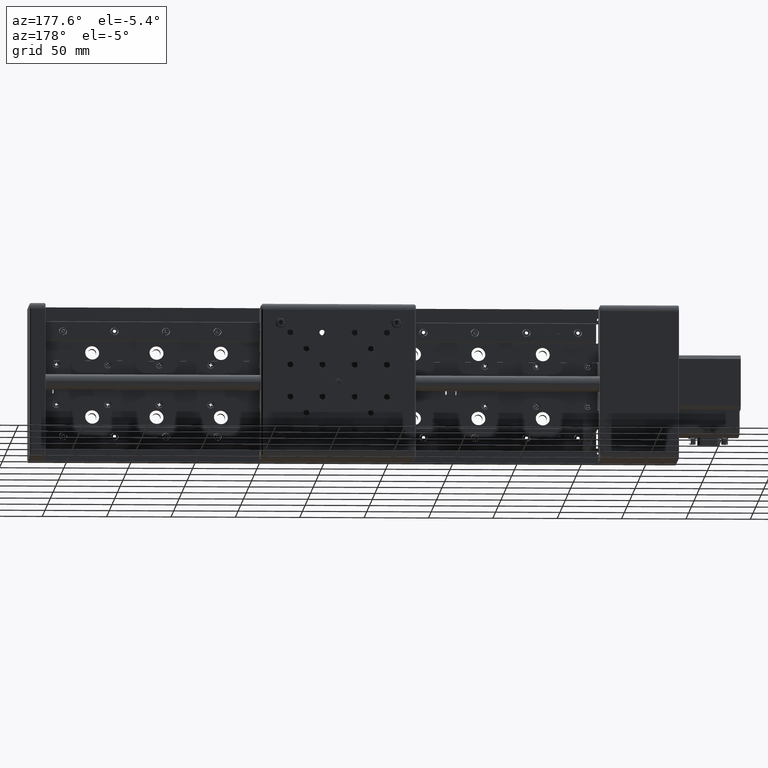
[diagram: clean part render]
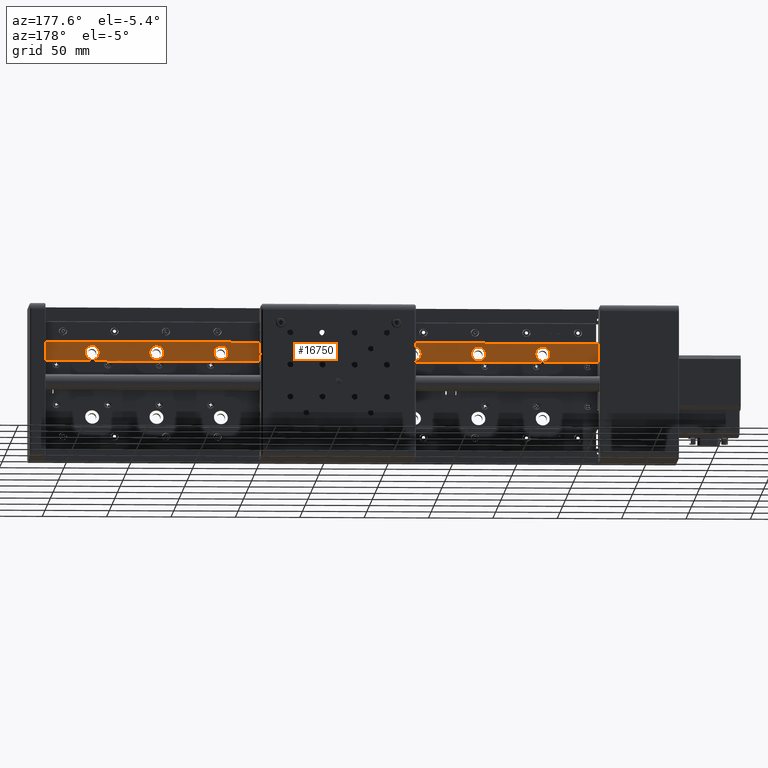
[diagram: same view with one face highlighted and labeled with its STEP entity id]
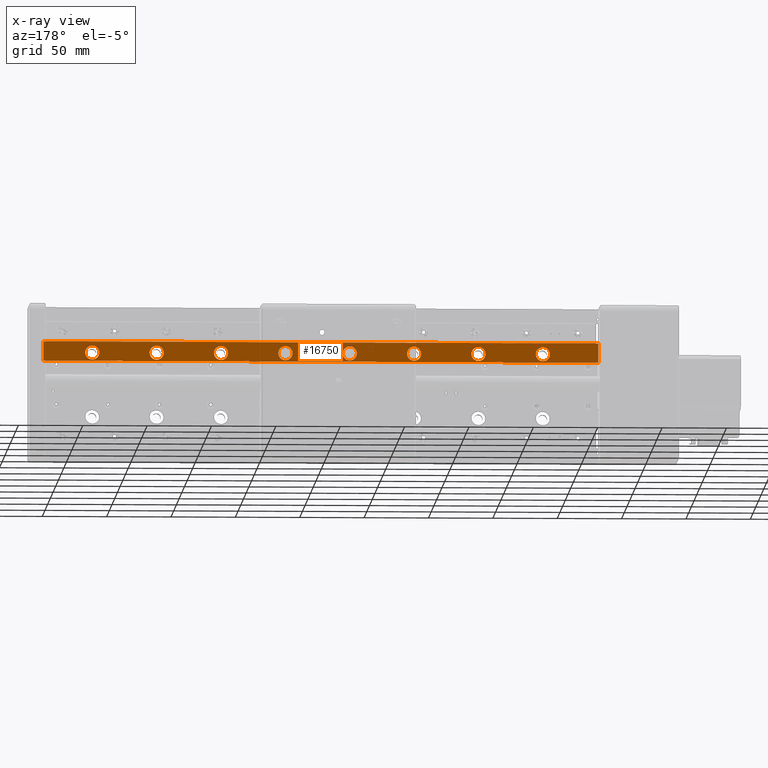
[diagram: x-ray of the same camera — body ghosted, the highlighted face saturated]
A machine part, auxiliary view. The second image highlights one B-rep face of the part: STEP entity #16750.
The next image is the same camera in x-ray: the body ghosted, the highlighted face saturated — about 0% of this face is hidden behind the body in this view.
In plain terms, the highlighted planar face has unit normal (-0, 1, -0).
Its self-contained STEP definition (entity closure, byte-faithful):
#92 = CIRCLE ( 'NONE', #26109, 5.500000000000005300 ) ;
#1099 = CIRCLE ( 'NONE', #9586, 5.500000000000005300 ) ;
#1125 = ORIENTED_EDGE ( 'NONE', *, *, #20889, .F. ) ;
#1168 = CARTESIAN_POINT ( 'NONE',  ( -279.1180563949342900, 13.99999999999999600, 282.9914224104928700 ) ) ;
#1370 = CARTESIAN_POINT ( 'NONE',  ( -79.11805639493427100, 13.99999999999999600, 282.9914224104949200 ) ) ;
#1563 = VERTEX_POINT ( 'NONE', #16923 ) ;
#1589 = ORIENTED_EDGE ( 'NONE', *, *, #17744, .F. ) ;
#1687 = CIRCLE ( 'NONE', #14296, 5.500000000000005300 ) ;
#1695 = EDGE_CURVE ( 'NONE', #31767, #20693, #43169, .T. ) ;
#2341 = FACE_BOUND ( 'NONE', #28263, .T. ) ;
#2374 = CIRCLE ( 'NONE', #38308, 5.499999999999991100 ) ;
#3533 = CIRCLE ( 'NONE', #29949, 5.500000000000005300 ) ;
#3553 = VERTEX_POINT ( 'NONE', #27562 ) ;
#3928 = VERTEX_POINT ( 'NONE', #34228 ) ;
#4227 = DIRECTION ( 'NONE',  ( -1.751623080406021300E-046, 1.000000000000000000, -1.224646799147353200E-016 ) ) ;
#4477 = CIRCLE ( 'NONE', #17697, 5.500000000000005300 ) ;
#4719 = DIRECTION ( 'NONE',  ( -1.751623080406021300E-046, 1.000000000000000000, -1.224646799147353200E-016 ) ) ;
#4723 = DIRECTION ( 'NONE',  ( -1.000000000000000000, 0.0000000000000000000, -1.009293658750141300E-014 ) ) ;
#4802 = CIRCLE ( 'NONE', #32745, 5.500000000000005300 ) ;
#4852 = CARTESIAN_POINT ( 'NONE',  ( -123.6180563949342700, 13.99999999999999600, 282.9914224104944700 ) ) ;
#5155 = DIRECTION ( 'NONE',  ( -1.000000000000000000, 0.0000000000000000000, -1.009293658750144000E-014 ) ) ;
#5230 = ORIENTED_EDGE ( 'NONE', *, *, #29791, .F. ) ;
#5315 = VERTEX_POINT ( 'NONE', #10795 ) ;
#5662 = VECTOR ( 'NONE', #19062, 1000.000000000000000 ) ;
#5668 = ORIENTED_EDGE ( 'NONE', *, *, #25750, .F. ) ;
#5872 = ORIENTED_EDGE ( 'NONE', *, *, #15147, .F. ) ;
#6062 = VERTEX_POINT ( 'NONE', #32636 ) ;
#6746 = EDGE_CURVE ( 'NONE', #1563, #10118, #1687, .T. ) ;
#7060 = CIRCLE ( 'NONE', #39084, 5.500000000000005300 ) ;
#7777 = EDGE_LOOP ( 'NONE', ( #20068, #1589 ) ) ;
#7970 = DIRECTION ( 'NONE',  ( -1.000000000000000000, 0.0000000000000000000, -1.009293658750144000E-014 ) ) ;
#8270 = DIRECTION ( 'NONE',  ( -1.751623080406021300E-046, 1.000000000000000000, -1.224646799147353200E-016 ) ) ;
#8511 = CARTESIAN_POINT ( 'NONE',  ( -129.1180563949342600, 13.99999999999999600, 282.9914224104944100 ) ) ;
#8567 = DIRECTION ( 'NONE',  ( -1.751623080406021300E-046, 1.000000000000000000, -1.224646799147353200E-016 ) ) ;
#8721 = FACE_BOUND ( 'NONE', #40092, .T. ) ;
#8995 = DIRECTION ( 'NONE',  ( -1.000000000000000000, 0.0000000000000000000, -1.009293658750141300E-014 ) ) ;
#9137 = VERTEX_POINT ( 'NONE', #11884 ) ;
#9586 = AXIS2_PLACEMENT_3D ( 'NONE', #13820, #30820, #9999 ) ;
#9999 = DIRECTION ( 'NONE',  ( -1.000000000000000000, 0.0000000000000000000, -1.009293658750141300E-014 ) ) ;
#10075 = VERTEX_POINT ( 'NONE', #20903 ) ;
#10118 = VERTEX_POINT ( 'NONE', #10898 ) ;
#10795 = CARTESIAN_POINT ( 'NONE',  ( -229.1180563949342900, 13.99999999999999600, 282.9914224104933300 ) ) ;
#10807 = CIRCLE ( 'NONE', #32812, 5.499999999999991100 ) ;
#10898 = CARTESIAN_POINT ( 'NONE',  ( -18.11805639493426100, 13.99999999999999600, 282.9914224104956000 ) ) ;
#11003 = EDGE_LOOP ( 'NONE', ( #37031, #5668, #11388, #37976 ) ) ;
#11388 = ORIENTED_EDGE ( 'NONE', *, *, #42470, .F. ) ;
#11436 = CARTESIAN_POINT ( 'NONE',  ( 70.88194360506575700, 13.99999999999999600, 282.9914224104965100 ) ) ;
#11445 = DIRECTION ( 'NONE',  ( -1.751623080406021300E-046, 1.000000000000000000, -1.224646799147353200E-016 ) ) ;
#11726 = EDGE_CURVE ( 'NONE', #10075, #6062, #38410, .T. ) ;
#11742 = CARTESIAN_POINT ( 'NONE',  ( -316.6180563949343400, 13.99999999999999600, 291.4914224104924800 ) ) ;
#11884 = CARTESIAN_POINT ( 'NONE',  ( -218.1180563949342900, 13.99999999999999600, 282.9914224104934400 ) ) ;
#11921 = FACE_BOUND ( 'NONE', #18164, .T. ) ;
#12087 = CARTESIAN_POINT ( 'NONE',  ( 76.38194360506575700, 13.99999999999999600, 282.9914224104965700 ) ) ;
#12589 = ORIENTED_EDGE ( 'NONE', *, *, #33030, .F. ) ;
#13228 = DIRECTION ( 'NONE',  ( -1.751623080406021300E-046, 1.000000000000000000, -1.224646799147353200E-016 ) ) ;
#13737 = EDGE_LOOP ( 'NONE', ( #5230, #23146 ) ) ;
#13820 = CARTESIAN_POINT ( 'NONE',  ( 76.38194360506575700, 13.99999999999999600, 282.9914224104965700 ) ) ;
#13856 = DIRECTION ( 'NONE',  ( -1.000000000000000000, 0.0000000000000000000, -1.009293658750141300E-014 ) ) ;
#14048 = DIRECTION ( 'NONE',  ( -1.000000000000000000, 0.0000000000000000000, -1.009293658750141300E-014 ) ) ;
#14296 = AXIS2_PLACEMENT_3D ( 'NONE', #37993, #4227, #24729 ) ;
#14410 = AXIS2_PLACEMENT_3D ( 'NONE', #30074, #13228, #36937 ) ;
#14752 = VECTOR ( 'NONE', #15564, 1000.000000000000000 ) ;
#14878 = VERTEX_POINT ( 'NONE', #8511 ) ;
#15147 = EDGE_CURVE ( 'NONE', #26582, #40997, #4802, .T. ) ;
#15186 = CIRCLE ( 'NONE', #42209, 5.500000000000005300 ) ;
#15463 = CIRCLE ( 'NONE', #17429, 5.500000000000005300 ) ;
#15564 = DIRECTION ( 'NONE',  ( 1.000000000000000000, 1.274654131356476300E-030, 1.040834085586084100E-014 ) ) ;
#15746 = VERTEX_POINT ( 'NONE', #26042 ) ;
#16343 = CARTESIAN_POINT ( 'NONE',  ( -73.61805639493427100, 13.99999999999999600, 282.9914224104949800 ) ) ;
#16570 = VECTOR ( 'NONE', #30123, 1000.000000000000000 ) ;
#16690 = VERTEX_POINT ( 'NONE', #1168 ) ;
#16733 = EDGE_CURVE ( 'NONE', #15746, #16690, #4477, .T. ) ;
#16750 = ADVANCED_FACE ( 'NONE', ( #17664, #8721, #30372, #20851, #41561, #25618, #2341, #33613, #11921 ), #32550, .T. ) ;
#16780 = CARTESIAN_POINT ( 'NONE',  ( -331.6180563949343400, 13.99999999999999600, 291.4914224104923600 ) ) ;
#16838 = DIRECTION ( 'NONE',  ( -1.000000000000000000, 0.0000000000000000000, -1.009293658750141300E-014 ) ) ;
#16923 = CARTESIAN_POINT ( 'NONE',  ( -29.11805639493426800, 13.99999999999999600, 282.9914224104954900 ) ) ;
#17061 = EDGE_CURVE ( 'NONE', #14878, #3553, #10807, .T. ) ;
#17429 = AXIS2_PLACEMENT_3D ( 'NONE', #22897, #33769, #40417 ) ;
#17513 = VERTEX_POINT ( 'NONE', #1370 ) ;
#17664 = FACE_OUTER_BOUND ( 'NONE', #11003, .T. ) ;
#17697 = AXIS2_PLACEMENT_3D ( 'NONE', #35519, #8567, #22555 ) ;
#17744 = EDGE_CURVE ( 'NONE', #10118, #1563, #15463, .T. ) ;
#17976 = DIRECTION ( 'NONE',  ( -1.000000000000000000, 0.0000000000000000000, -1.009293658750141300E-014 ) ) ;
#18137 = CARTESIAN_POINT ( 'NONE',  ( -316.6180563949342300, 13.99999999999999500, 276.4914224104924800 ) ) ;
#18164 = EDGE_LOOP ( 'NONE', ( #41834, #18914 ) ) ;
#18468 = ORIENTED_EDGE ( 'NONE', *, *, #24022, .F. ) ;
#18543 = CARTESIAN_POINT ( 'NONE',  ( 26.38194360506576800, 13.99999999999999600, 282.9914224104960000 ) ) ;
#18810 = EDGE_CURVE ( 'NONE', #20693, #31767, #1099, .T. ) ;
#18914 = ORIENTED_EDGE ( 'NONE', *, *, #16733, .F. ) ;
#19000 = DIRECTION ( 'NONE',  ( -1.611493233973539600E-044, 1.000000000000000000, -1.224646799147353200E-016 ) ) ;
#19062 = DIRECTION ( 'NONE',  ( -1.040834085586084100E-014, 1.224646799147353200E-016, 1.000000000000000000 ) ) ;
#19099 = AXIS2_PLACEMENT_3D ( 'NONE', #38196, #24810, #17976 ) ;
#19117 = EDGE_LOOP ( 'NONE', ( #1125, #5872 ) ) ;
#19796 = CARTESIAN_POINT ( 'NONE',  ( -223.6180563949342900, 13.99999999999999600, 282.9914224104933900 ) ) ;
#20068 = ORIENTED_EDGE ( 'NONE', *, *, #6746, .F. ) ;
#20551 = CARTESIAN_POINT ( 'NONE',  ( 114.3819436050656300, 13.99999999999999600, 291.4914224104969700 ) ) ;
#20693 = VERTEX_POINT ( 'NONE', #43977 ) ;
#20755 = EDGE_CURVE ( 'NONE', #16690, #15746, #15186, .T. ) ;
#20851 = FACE_BOUND ( 'NONE', #7777, .T. ) ;
#20889 = EDGE_CURVE ( 'NONE', #40997, #26582, #3533, .T. ) ;
#20903 = CARTESIAN_POINT ( 'NONE',  ( -168.1180563949342600, 13.99999999999999600, 282.9914224104940100 ) ) ;
#22100 = CARTESIAN_POINT ( 'NONE',  ( -68.11805639493425700, 13.99999999999999600, 282.9914224104950300 ) ) ;
#22182 = EDGE_CURVE ( 'NONE', #9137, #5315, #7060, .T. ) ;
#22555 = DIRECTION ( 'NONE',  ( -1.000000000000000000, 0.0000000000000000000, -1.009293658750141300E-014 ) ) ;
#22897 = CARTESIAN_POINT ( 'NONE',  ( -23.61805639493426400, 13.99999999999999600, 282.9914224104955500 ) ) ;
#23146 = ORIENTED_EDGE ( 'NONE', *, *, #22182, .F. ) ;
#23446 = EDGE_LOOP ( 'NONE', ( #18468, #27232 ) ) ;
#23555 = VERTEX_POINT ( 'NONE', #20551 ) ;
#23583 = LINE ( 'NONE', #32172, #5662 ) ;
#23998 = EDGE_LOOP ( 'NONE', ( #40953, #12589 ) ) ;
#24022 = EDGE_CURVE ( 'NONE', #17513, #32230, #39517, .T. ) ;
#24360 = CARTESIAN_POINT ( 'NONE',  ( -273.6180563949342900, 13.99999999999999600, 282.9914224104929300 ) ) ;
#24535 = LINE ( 'NONE', #16780, #16570 ) ;
#24729 = DIRECTION ( 'NONE',  ( -1.000000000000000000, 0.0000000000000000000, -1.009293658750141300E-014 ) ) ;
#24810 = DIRECTION ( 'NONE',  ( -1.751623080406021300E-046, 1.000000000000000000, -1.224646799147353200E-016 ) ) ;
#25365 = DIRECTION ( 'NONE',  ( -1.751623080406021300E-046, 1.000000000000000000, -1.224646799147353200E-016 ) ) ;
#25498 = CARTESIAN_POINT ( 'NONE',  ( -123.6180563949342700, 13.99999999999999600, 282.9914224104944700 ) ) ;
#25618 = FACE_BOUND ( 'NONE', #23998, .T. ) ;
#25750 = EDGE_CURVE ( 'NONE', #23555, #42310, #24535, .T. ) ;
#26014 = CARTESIAN_POINT ( 'NONE',  ( -316.6180563949334300, 13.99999999999998600, 205.9914224104924500 ) ) ;
#26042 = CARTESIAN_POINT ( 'NONE',  ( -268.1180563949342900, 13.99999999999999600, 282.9914224104929900 ) ) ;
#26109 = AXIS2_PLACEMENT_3D ( 'NONE', #28856, #11445, #42533 ) ;
#26286 = DIRECTION ( 'NONE',  ( -1.751623080406021300E-046, 1.000000000000000000, -1.224646799147353200E-016 ) ) ;
#26582 = VERTEX_POINT ( 'NONE', #33949 ) ;
#26794 = EDGE_CURVE ( 'NONE', #32230, #17513, #92, .T. ) ;
#27056 = EDGE_CURVE ( 'NONE', #42310, #43481, #42544, .T. ) ;
#27232 = ORIENTED_EDGE ( 'NONE', *, *, #26794, .F. ) ;
#27525 = EDGE_CURVE ( 'NONE', #6062, #10075, #43490, .T. ) ;
#27562 = CARTESIAN_POINT ( 'NONE',  ( -118.1180563949342700, 13.99999999999999600, 282.9914224104945200 ) ) ;
#28173 = DIRECTION ( 'NONE',  ( -1.751623080406021300E-046, 1.000000000000000000, -1.224646799147353200E-016 ) ) ;
#28263 = EDGE_LOOP ( 'NONE', ( #39066, #36782 ) ) ;
#28856 = CARTESIAN_POINT ( 'NONE',  ( -73.61805639493427100, 13.99999999999999600, 282.9914224104949800 ) ) ;
#28908 = CARTESIAN_POINT ( 'NONE',  ( 114.3819436050657900, 13.99999999999999500, 276.4914224104969700 ) ) ;
#29079 = DIRECTION ( 'NONE',  ( -1.751623080406021300E-046, 1.000000000000000000, -1.224646799147353200E-016 ) ) ;
#29791 = EDGE_CURVE ( 'NONE', #5315, #9137, #33891, .T. ) ;
#29949 = AXIS2_PLACEMENT_3D ( 'NONE', #38471, #8270, #4723 ) ;
#30074 = CARTESIAN_POINT ( 'NONE',  ( -173.6180563949342900, 13.99999999999999600, 282.9914224104939500 ) ) ;
#30123 = DIRECTION ( 'NONE',  ( -1.000000000000000000, -1.263222255738929800E-030, -1.031499250737778500E-014 ) ) ;
#30253 = DIRECTION ( 'NONE',  ( -1.751623080406021300E-046, 1.000000000000000000, -1.224646799147353200E-016 ) ) ;
#30372 = FACE_BOUND ( 'NONE', #19117, .T. ) ;
#30820 = DIRECTION ( 'NONE',  ( -1.751623080406021300E-046, 1.000000000000000000, -1.224646799147353200E-016 ) ) ;
#31620 = AXIS2_PLACEMENT_3D ( 'NONE', #37123, #30253, #13856 ) ;
#31767 = VERTEX_POINT ( 'NONE', #11436 ) ;
#32107 = DIRECTION ( 'NONE',  ( -1.000000000000000000, -1.274654131356476300E-030, -1.040834085586084100E-014 ) ) ;
#32172 = CARTESIAN_POINT ( 'NONE',  ( 114.3819436050665700, 13.99999999999998600, 202.9914224104969400 ) ) ;
#32230 = VERTEX_POINT ( 'NONE', #22100 ) ;
#32550 = PLANE ( 'NONE',  #36751 ) ;
#32636 = CARTESIAN_POINT ( 'NONE',  ( -179.1180563949342900, 13.99999999999999600, 282.9914224104939000 ) ) ;
#32745 = AXIS2_PLACEMENT_3D ( 'NONE', #18543, #4719, #35500 ) ;
#32812 = AXIS2_PLACEMENT_3D ( 'NONE', #25498, #25365, #5155 ) ;
#33030 = EDGE_CURVE ( 'NONE', #3553, #14878, #2374, .T. ) ;
#33613 = FACE_BOUND ( 'NONE', #13737, .T. ) ;
#33769 = DIRECTION ( 'NONE',  ( -1.751623080406021300E-046, 1.000000000000000000, -1.224646799147353200E-016 ) ) ;
#33891 = CIRCLE ( 'NONE', #19099, 5.500000000000005300 ) ;
#33949 = CARTESIAN_POINT ( 'NONE',  ( 31.88194360506577100, 13.99999999999999600, 282.9914224104960600 ) ) ;
#34228 = CARTESIAN_POINT ( 'NONE',  ( 114.3819436050657900, 13.99999999999999500, 276.4914224104969700 ) ) ;
#35500 = DIRECTION ( 'NONE',  ( -1.000000000000000000, 0.0000000000000000000, -1.009293658750141300E-014 ) ) ;
#35519 = CARTESIAN_POINT ( 'NONE',  ( -273.6180563949342900, 13.99999999999999600, 282.9914224104929300 ) ) ;
#35967 = CARTESIAN_POINT ( 'NONE',  ( 126.3819436050653900, 14.00000000000000000, 317.9914224104970200 ) ) ;
#36690 = DIRECTION ( 'NONE',  ( -1.000000000000000000, 0.0000000000000000000, -1.009293658750141300E-014 ) ) ;
#36751 = AXIS2_PLACEMENT_3D ( 'NONE', #35967, #19000, #32107 ) ;
#36782 = ORIENTED_EDGE ( 'NONE', *, *, #11726, .F. ) ;
#36937 = DIRECTION ( 'NONE',  ( -1.000000000000000000, 0.0000000000000000000, -1.009293658750141300E-014 ) ) ;
#37031 = ORIENTED_EDGE ( 'NONE', *, *, #27056, .F. ) ;
#37123 = CARTESIAN_POINT ( 'NONE',  ( -173.6180563949342900, 13.99999999999999600, 282.9914224104939500 ) ) ;
#37347 = DIRECTION ( 'NONE',  ( -1.751623080406021300E-046, 1.000000000000000000, -1.224646799147353200E-016 ) ) ;
#37976 = ORIENTED_EDGE ( 'NONE', *, *, #40885, .F. ) ;
#37993 = CARTESIAN_POINT ( 'NONE',  ( -23.61805639493426400, 13.99999999999999600, 282.9914224104955500 ) ) ;
#38187 = DIRECTION ( 'NONE',  ( -1.751623080406021300E-046, 1.000000000000000000, -1.224646799147353200E-016 ) ) ;
#38196 = CARTESIAN_POINT ( 'NONE',  ( -223.6180563949342900, 13.99999999999999600, 282.9914224104933900 ) ) ;
#38308 = AXIS2_PLACEMENT_3D ( 'NONE', #4852, #28173, #7970 ) ;
#38410 = CIRCLE ( 'NONE', #14410, 5.500000000000005300 ) ;
#38471 = CARTESIAN_POINT ( 'NONE',  ( 26.38194360506576800, 13.99999999999999600, 282.9914224104960000 ) ) ;
#38486 = AXIS2_PLACEMENT_3D ( 'NONE', #12087, #29079, #8995 ) ;
#38831 = VECTOR ( 'NONE', #39699, 1000.000000000000000 ) ;
#39066 = ORIENTED_EDGE ( 'NONE', *, *, #27525, .F. ) ;
#39084 = AXIS2_PLACEMENT_3D ( 'NONE', #19796, #37347, #16838 ) ;
#39517 = CIRCLE ( 'NONE', #39975, 5.500000000000005300 ) ;
#39699 = DIRECTION ( 'NONE',  ( 1.040834085586084100E-014, -1.224646799147353200E-016, -1.000000000000000000 ) ) ;
#39873 = CARTESIAN_POINT ( 'NONE',  ( 20.88194360506576100, 13.99999999999999600, 282.9914224104959400 ) ) ;
#39975 = AXIS2_PLACEMENT_3D ( 'NONE', #16343, #26286, #36690 ) ;
#40092 = EDGE_LOOP ( 'NONE', ( #43327, #42071 ) ) ;
#40417 = DIRECTION ( 'NONE',  ( -1.000000000000000000, 0.0000000000000000000, -1.009293658750141300E-014 ) ) ;
#40885 = EDGE_CURVE ( 'NONE', #43481, #3928, #42889, .T. ) ;
#40953 = ORIENTED_EDGE ( 'NONE', *, *, #17061, .F. ) ;
#40997 = VERTEX_POINT ( 'NONE', #39873 ) ;
#41561 = FACE_BOUND ( 'NONE', #23446, .T. ) ;
#41834 = ORIENTED_EDGE ( 'NONE', *, *, #20755, .F. ) ;
#42071 = ORIENTED_EDGE ( 'NONE', *, *, #18810, .F. ) ;
#42209 = AXIS2_PLACEMENT_3D ( 'NONE', #24360, #38187, #14048 ) ;
#42310 = VERTEX_POINT ( 'NONE', #11742 ) ;
#42470 = EDGE_CURVE ( 'NONE', #3928, #23555, #23583, .T. ) ;
#42533 = DIRECTION ( 'NONE',  ( -1.000000000000000000, 0.0000000000000000000, -1.009293658750141300E-014 ) ) ;
#42544 = LINE ( 'NONE', #26014, #38831 ) ;
#42889 = LINE ( 'NONE', #28908, #14752 ) ;
#43169 = CIRCLE ( 'NONE', #38486, 5.500000000000005300 ) ;
#43327 = ORIENTED_EDGE ( 'NONE', *, *, #1695, .F. ) ;
#43481 = VERTEX_POINT ( 'NONE', #18137 ) ;
#43490 = CIRCLE ( 'NONE', #31620, 5.500000000000005300 ) ;
#43977 = CARTESIAN_POINT ( 'NONE',  ( 81.88194360506575700, 13.99999999999999600, 282.9914224104966300 ) ) ;